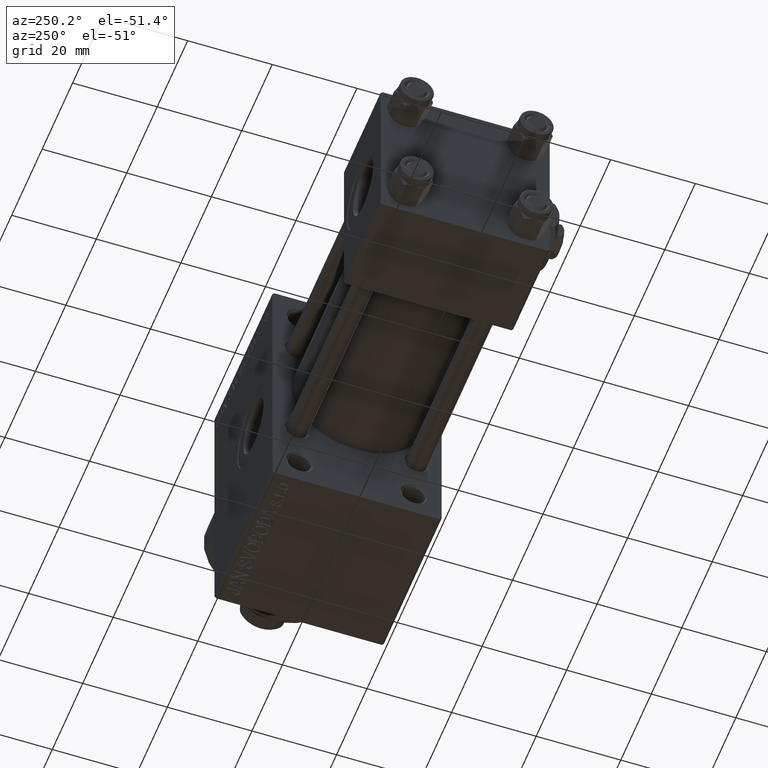
[diagram: clean part render]
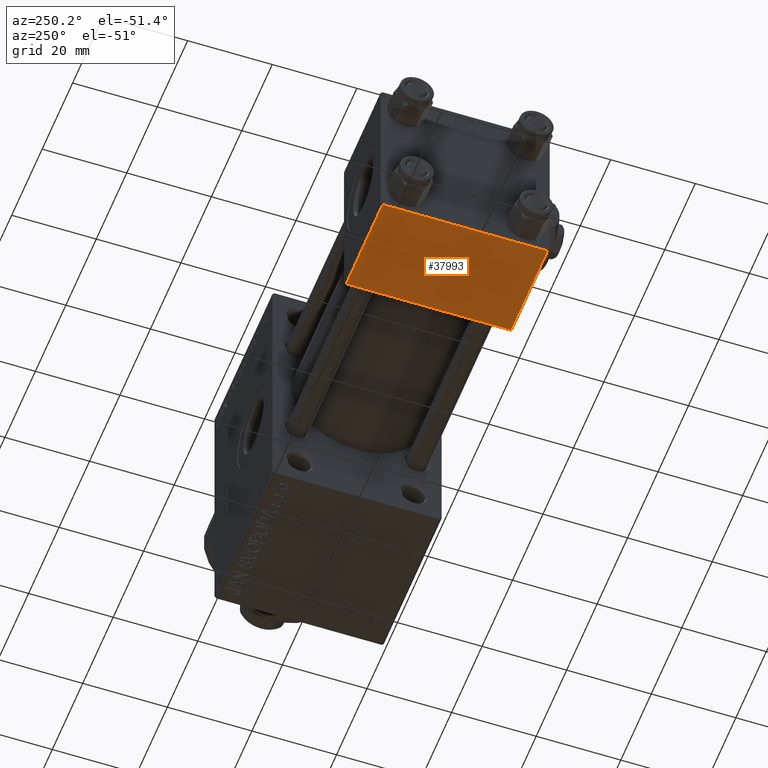
[diagram: same view with one face highlighted and labeled with its STEP entity id]
A machine part, auxiliary view. The second image highlights one B-rep face of the part: STEP entity #37993.
In plain terms, the highlighted planar face has unit normal (0, -0, -1).
Its self-contained STEP definition (entity closure, byte-faithful):
#2093 = CARTESIAN_POINT ( 'NONE',  ( 0.000000000000000000, -19.50000000000000711, -20.00000000000000000 ) ) ;
#3223 = VECTOR ( 'NONE', #20643, 1000.000000000000000 ) ;
#5259 = CARTESIAN_POINT ( 'NONE',  ( 0.000000000000000000, 19.50000000000000711, -20.00000000000000711 ) ) ;
#5871 = DIRECTION ( 'NONE',  ( 1.000000000000000000, 0.000000000000000000, 0.000000000000000000 ) ) ;
#6304 = VECTOR ( 'NONE', #43005, 1000.000000000000000 ) ;
#10830 = LINE ( 'NONE', #17732, #27201 ) ;
#11742 = EDGE_CURVE ( 'NONE', #32314, #42253, #12756, .T. ) ;
#12172 = PLANE ( 'NONE',  #15010 ) ;
#12756 = LINE ( 'NONE', #2093, #3223 ) ;
#12759 = ORIENTED_EDGE ( 'NONE', *, *, #35678, .F. ) ;
#14398 = EDGE_LOOP ( 'NONE', ( #12759, #35957, #15369, #42156 ) ) ;
#15010 = AXIS2_PLACEMENT_3D ( 'NONE', #27251, #41396, #33727 ) ;
#15369 = ORIENTED_EDGE ( 'NONE', *, *, #22632, .T. ) ;
#15566 = CARTESIAN_POINT ( 'NONE',  ( 24.00000000000000000, 19.50000000000000711, -20.00000000000000711 ) ) ;
#17732 = CARTESIAN_POINT ( 'NONE',  ( 24.00000000000000000, 19.50000000000000711, -20.00000000000000711 ) ) ;
#19730 = LINE ( 'NONE', #42513, #6304 ) ;
#20260 = EDGE_CURVE ( 'NONE', #35136, #48835, #10830, .T. ) ;
#20643 = DIRECTION ( 'NONE',  ( -1.000000000000000000, 0.000000000000000000, 0.000000000000000000 ) ) ;
#22086 = DIRECTION ( 'NONE',  ( 0.000000000000000000, -1.000000000000000000, 1.734723475976807094E-16 ) ) ;
#22632 = EDGE_CURVE ( 'NONE', #48835, #32314, #48095, .T. ) ;
#25295 = CARTESIAN_POINT ( 'NONE',  ( 24.00000000000000000, 20.00000000000000000, -20.00000000000000711 ) ) ;
#27201 = VECTOR ( 'NONE', #5871, 1000.000000000000000 ) ;
#27251 = CARTESIAN_POINT ( 'NONE',  ( 24.00000000000000000, 20.00000000000000000, -20.00000000000000711 ) ) ;
#30970 = FACE_OUTER_BOUND ( 'NONE', #14398, .T. ) ;
#32314 = VERTEX_POINT ( 'NONE', #37473 ) ;
#33727 = DIRECTION ( 'NONE',  ( 0.000000000000000000, 1.000000000000000000, -1.734723475976806848E-16 ) ) ;
#35136 = VERTEX_POINT ( 'NONE', #5259 ) ;
#35678 = EDGE_CURVE ( 'NONE', #35136, #42253, #19730, .T. ) ;
#35957 = ORIENTED_EDGE ( 'NONE', *, *, #20260, .T. ) ;
#37473 = CARTESIAN_POINT ( 'NONE',  ( 24.00000000000000000, -19.50000000000000711, -20.00000000000000000 ) ) ;
#37993 = ADVANCED_FACE ( 'NONE', ( #30970 ), #12172, .T. ) ;
#40785 = VECTOR ( 'NONE', #22086, 1000.000000000000000 ) ;
#41396 = DIRECTION ( 'NONE',  ( 0.000000000000000000, -1.734723475976806848E-16, -1.000000000000000000 ) ) ;
#42156 = ORIENTED_EDGE ( 'NONE', *, *, #11742, .T. ) ;
#42253 = VERTEX_POINT ( 'NONE', #47528 ) ;
#42513 = CARTESIAN_POINT ( 'NONE',  ( 0.000000000000000000, 20.00000000000000000, -20.00000000000000711 ) ) ;
#43005 = DIRECTION ( 'NONE',  ( 0.000000000000000000, -1.000000000000000000, 1.734723475976807094E-16 ) ) ;
#47528 = CARTESIAN_POINT ( 'NONE',  ( 0.000000000000000000, -19.50000000000000711, -20.00000000000000000 ) ) ;
#48095 = LINE ( 'NONE', #25295, #40785 ) ;
#48835 = VERTEX_POINT ( 'NONE', #15566 ) ;